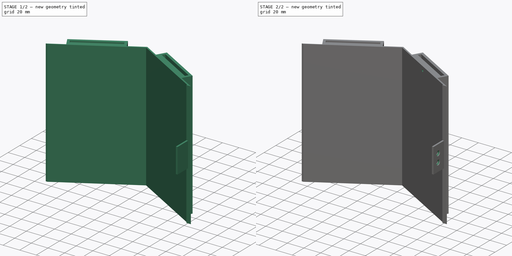
[diagram: build sequence overview — one tinted view per stage of 2, left to right]
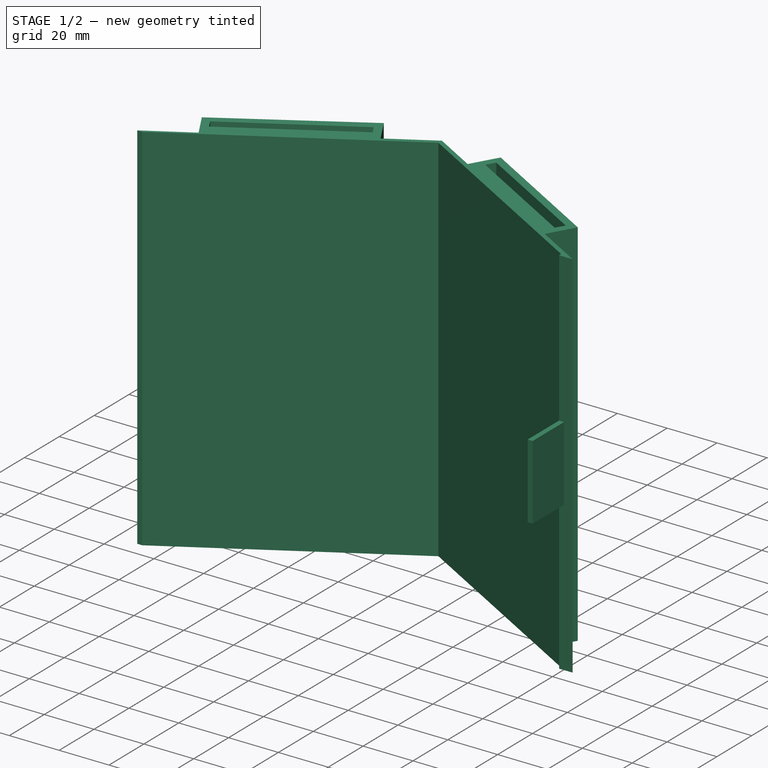
[diagram: stage 1 of 2 — iso view after this stage's code; geometry added in this stage tinted green]
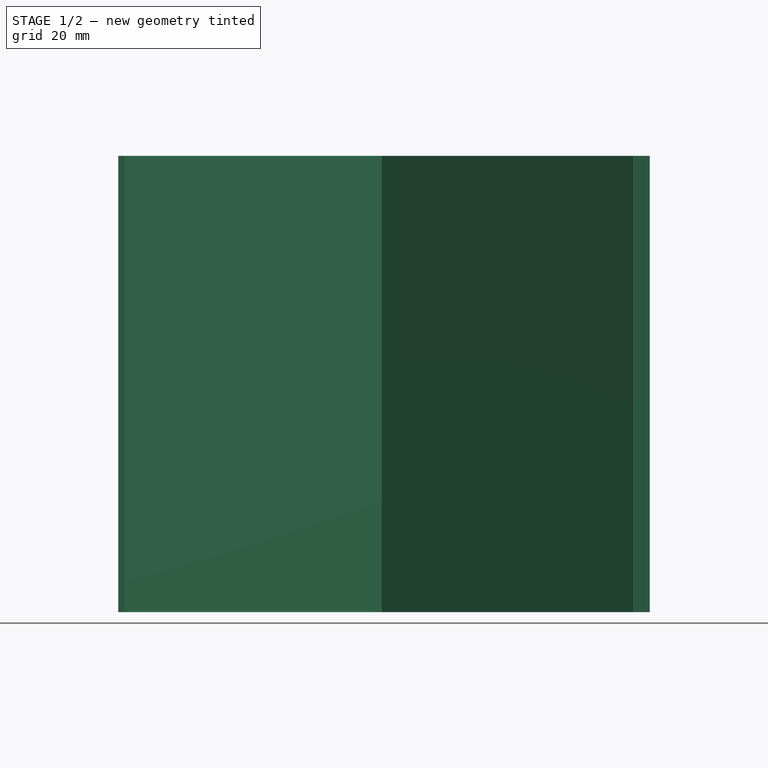
[diagram: stage 1 of 2 — front view after this stage's code; geometry added in this stage tinted green]
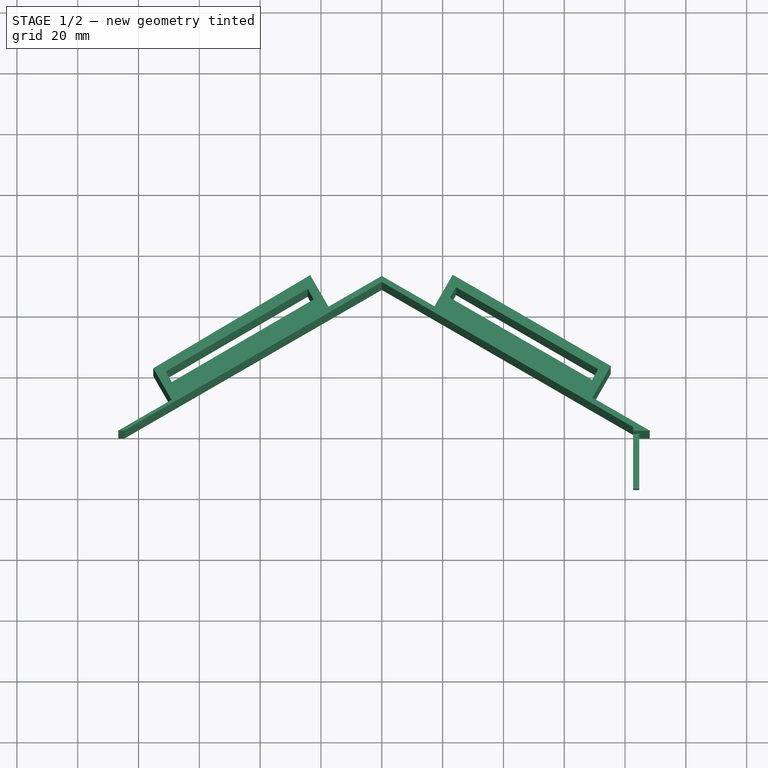
[diagram: stage 1 of 2 — top view after this stage's code; geometry added in this stage tinted green]
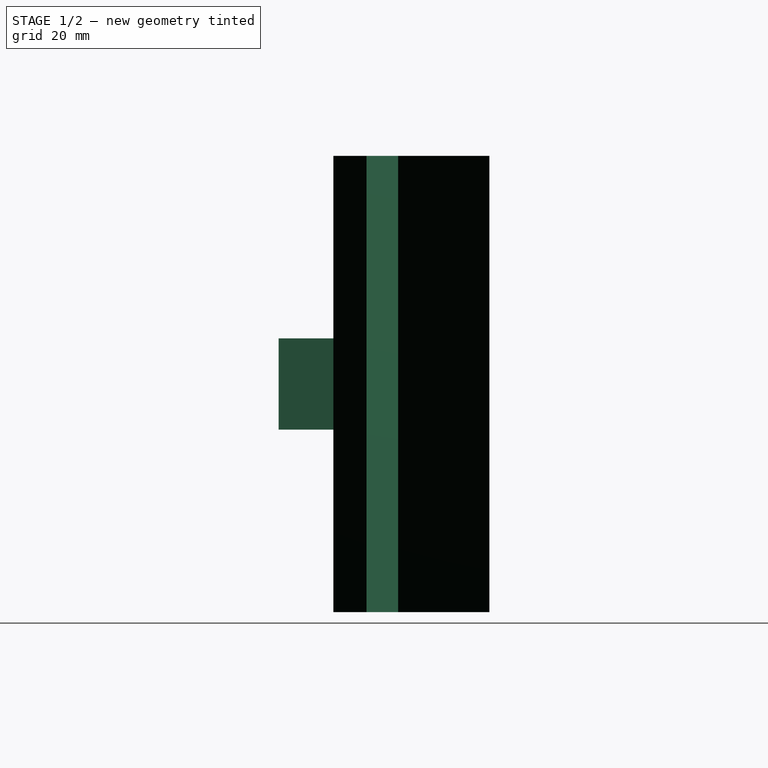
[diagram: stage 1 of 2 — right view after this stage's code; geometry added in this stage tinted green]
FCSTD DOCUMENT  (FreeCAD 0.20R29177 +426 (Git))
Label: classifier_middle_verPartial2
License: All rights reserved
LicenseURL: https://en.wikipedia.org/wiki/All_rights_reserved
objects: Sketcher::SketchObject×8, PartDesign::Hole×2, PartDesign::Pad×1, PartDesign::Pocket×1, PartDesign::CoordinateSystem×1, PartDesign::Body×1
note: 18 computed .brp shape members not serialized (recipe doc carries the construction recipe); baked Part::Feature solids carry a one-line shape summary decoded from their .brp

FEATURE [Sketcher::SketchObject] Sketch
  FullyConstrained = true
  MapMode = 5
  Support = -> [XY_Plane]
  sketch-geometry (40):
    g0: LineSegment StartX=82.66 StartY=1.1547 StartZ=0 EndX=0 EndY=48.8785 EndZ=0
    g1: LineSegment StartX=0 StartY=48.8785 StartZ=0 EndX=-84.66 EndY=-7.1e-15 EndZ=0
    g2: Circle CenterX=0 CenterY=-48.8785 CenterZ=0 NormalX=0 NormalY=0 NormalZ=1 AngleXU=0 Radius=97.7569
    g3: LineSegment StartX=0 StartY=50.8785 StartZ=0 EndX=-17.5342 EndY=40.7551 EndZ=0
    g4: Circle CenterX=0 CenterY=-48.8785 CenterZ=0 NormalX=0 NormalY=0 NormalZ=1 AngleXU=0 Radius=99.7569
    g5: GeomPoint X=43.3013 Y=25.8785 Z=0
    g6: GeomPoint X=-43.33 Y=25.4392 Z=0
    g7: LineSegment StartX=-69.1258 StartY=10.1234 StartZ=0 EndX=-75.1258 EndY=20.5157 EndZ=0
    g8: LineSegment StartX=-75.1258 StartY=20.5157 StartZ=0 EndX=-23.5342 EndY=51.1474 EndZ=0
    g9: LineSegment StartX=-23.5342 StartY=51.1474 StartZ=0 EndX=-17.5342 EndY=40.7551 EndZ=0
    g10: LineSegment StartX=-71.0462 StartY=19.4492 StartZ=0 EndX=-69.0462 EndY=15.9851 EndZ=0
    g11: LineSegment StartX=-69.0462 StartY=15.9851 StartZ=0 EndX=-22.3817 EndY=43.1517 EndZ=0
    g12: LineSegment StartX=-22.3817 StartY=43.1517 StartZ=0 EndX=-24.3817 EndY=46.6158 EndZ=0
    g13: LineSegment StartX=-24.3817 StartY=46.6158 StartZ=0 EndX=-71.0462 EndY=19.4492 EndZ=0
    g14: LineSegment StartX=-23.5342 StartY=51.1474 StartZ=0 EndX=-21.8021 EndY=48.1474 EndZ=0
    g15: LineSegment StartX=-26.1138 StartY=49.6158 StartZ=0 EndX=-24.3817 EndY=46.6158 EndZ=0
    g16: LineSegment StartX=-24.3817 StartY=46.6158 StartZ=0 EndX=-21.8021 EndY=48.1474 EndZ=0
    g17: LineSegment StartX=-23.5342 StartY=51.1474 StartZ=0 EndX=-26.1138 EndY=49.6158 EndZ=0
    g18: LineSegment StartX=-71.0462 StartY=19.4492 StartZ=0 EndX=-72.5462 EndY=22.0473 EndZ=0
    g19: LineSegment StartX=-71.0462 StartY=19.4492 StartZ=0 EndX=-73.6258 EndY=17.9176 EndZ=0
    g20: LineSegment StartX=75.282 StartY=21.2708 StartZ=0 EndX=69.282 EndY=10.8785 EndZ=0
    g21: LineSegment StartX=23.3205 StartY=51.2708 StartZ=0 EndX=75.282 EndY=21.2708 EndZ=0
    g22: LineSegment StartX=72.684 StartY=22.7708 StartZ=0 EndX=71.184 EndY=20.1727 EndZ=0
    g23: LineSegment StartX=71.184 StartY=20.1727 StartZ=0 EndX=73.782 EndY=18.6727 EndZ=0
    g24: LineSegment StartX=69.184 StartY=16.7086 StartZ=0 EndX=71.184 EndY=20.1727 EndZ=0
    g25: LineSegment StartX=71.184 StartY=20.1727 StartZ=0 EndX=24.4186 EndY=47.1727 EndZ=0
    g26: LineSegment StartX=22.4186 StartY=43.7086 StartZ=0 EndX=69.184 EndY=16.7086 EndZ=0
    g27: LineSegment StartX=24.4186 StartY=47.1727 StartZ=0 EndX=22.4186 EndY=43.7086 EndZ=0
    g28: LineSegment StartX=24.4186 StartY=47.1727 StartZ=0 EndX=25.9186 EndY=49.7708 EndZ=0
    g29: LineSegment StartX=24.4186 StartY=47.1727 StartZ=0 EndX=21.8205 EndY=48.6727 EndZ=0
    g30: LineSegment StartX=17.3205 StartY=40.8785 StartZ=0 EndX=23.3205 EndY=51.2708 EndZ=0
    g31: LineSegment StartX=17.3205 StartY=40.8785 StartZ=0 EndX=0 EndY=50.8785 EndZ=0
    g32: LineSegment StartX=84.66 StartY=0 StartZ=0 EndX=84.66 EndY=-18 EndZ=0
    g33: LineSegment StartX=84.66 StartY=-18 StartZ=0 EndX=82.66 EndY=-18 EndZ=0
    g34: LineSegment StartX=82.66 StartY=-18 StartZ=0 EndX=82.66 EndY=1.1547 EndZ=0
    g35: LineSegment StartX=0 StartY=48.8785 StartZ=0 EndX=84.66 EndY=-7.1e-15 EndZ=0
    g36: LineSegment StartX=69.282 StartY=10.8785 StartZ=0 EndX=88.1241 EndY=0 EndZ=0
    g37: LineSegment StartX=84.66 StartY=0 StartZ=0 EndX=88.1241 EndY=0 EndZ=0
    g38: LineSegment StartX=-84.66 StartY=-7.1e-15 StartZ=0 EndX=-86.66 EndY=-7.1e-15 EndZ=0
    g39: LineSegment StartX=-69.1258 StartY=10.1234 StartZ=0 EndX=-86.66 EndY=-7.1e-15 EndZ=0
  constraints (112):
    c: Coincident(g0,g1)
    c: PointOnObject(g0,g2)
    c: PointOnObject(g1,g2)
    c: Coincident(g31,g3)
    c: PointOnObject(g31,g4)
    c: Angle(g-2,g0) = 1.0472
    c: PointOnObject(g0,g-2)
    c: PointOnObject(g31,g-2)
    c: Parallel(g1,g3)
    c: PointOnObject(g32,g-1)
    c: Coincident(g2,g4)
    c: PointOnObject(g2,g-2)
    c: Coincident(g7,g8)
    c: Coincident(g8,g9)
    c: Parallel(g7,g9)
    c: Distance(g9) = 12
    c: Equal(g7,g9)
    c: Distance(g8) = 60
    c: Symmetric(g9,g7,g6)
    c: Coincident(g10,g11)
    c: Coincident(g11,g12)
    c: Coincident(g13,g10)
    c: Parallel(g12,g10)
    c: Parallel(g10,g7)
    c: Parallel(g11,g13)
    c: Coincident(g14,g8)
    c: PointOnObject(g15,g8)
    c: Coincident(g15,g12)
    c: Equal(g15,g14)
    c: Coincident(g13,g12)
    c: Parallel(g15,g14)
    c: DistanceY(g14,g14) = 3
    c: Coincident(g16,g12)
    c: Coincident(g16,g14)
    c: Coincident(g17,g8)
    c: Distance(g17) = 3
    c: Equal(g16,g17)
    c: Parallel(g17,g16)
    c: PointOnObject(g16,g9)
    c: Coincident(g18,g10)
    c: PointOnObject(g18,g8)
    c: Coincident(g19,g10)
    c: PointOnObject(g19,g7)
    c: Parallel(g18,g7)
    c: Parallel(g8,g19)
    c: Distance(g18) = 3
    c: Distance(g19) = 3
    c: Distance(g12) = 4
    c: Coincident(g30,g21)
    c: Coincident(g21,g20)
    c: Parallel(g30,g20)
    c: Distance(g20) = 12
    c: Equal(g30,g20)
    c: Distance(g21) = 60
    c: Coincident(g27,g26)
    c: Coincident(g26,g24)
    c: Coincident(g25,g27)
    c: Parallel(g24,g27)
    c: Parallel(g27,g30)
    c: Parallel(g26,g25)
    c: PointOnObject(g22,g21)
    c: Coincident(g22,g24)
    c: Coincident(g25,g24)
    c: Coincident(g23,g24)
    c: PointOnObject(g23,g20)
    c: Coincident(g28,g27)
    c: PointOnObject(g28,g21)
    c: Coincident(g29,g27)
    c: PointOnObject(g29,g30)
    c: Parallel(g28,g30)
    c: Parallel(g21,g29)
    c: Distance(g28) = 3
    c: Distance(g29) = 3
    c: Distance(g24) = 4
    c: Parallel(g23,g21)
    c: Parallel(g22,g20)
    c: Parallel(g25,g21)
    c: Equal(g23,g29)
    c: Symmetric(g20,g30,g5)
    c: Perpendicular(g3,g9) = 1.5708
    c: Coincident(g31,g30)
    c: Parallel(g31,g0)
    c: Vertical(g32)
    c: DistanceY(g32,g32) = 18
    c: Coincident(g33,g32)
    c: Horizontal(g33)
    c: Coincident(g34,g33)
    c: Vertical(g34)
    c: DistanceX(g33,g33) = 2
    c: Coincident(g0,g34)
    c: Coincident(g35,g0)
    c: PointOnObject(g0,g35)
    c: Distance(g31) = 20
    c: DistanceY(g0,g3) = 2
    c: DistanceX(g1,g32) = 169.32
    c: Coincident(g35,g32)
    c: Symmetric(g32,g1,g-1)
    c: Coincident(g36,g20)
    c: PointOnObject(g36,g-1)
    c: Parallel(g36,g0)
    c: Perpendicular(g21,g20)
    c: Perpendicular(g31,g30)
    c: Coincident(g37,g32)
    c: Coincident(g37,g36)
    c: Coincident(g38,g1)
    c: Horizontal(g38)
    c: DistanceX(g38,g38) = 2
    c: Coincident(g39,g7)
    c: Coincident(g39,g38)
    c: Perpendicular(g39,g7)
    c: Equal(g3,g39)
    c: PointOnObject(g9,g3)
FEATURE [PartDesign::Pad] Pad
  Direction = (0,0,1)
  Length = 150
  Length2 = 10
  Profile = -> Sketch
  ReferenceAxis = -> Sketch [N_Axis]
  Refine = true
  Type = 0
FEATURE [Sketcher::SketchObject] Sketch001
  ExternalGeometry = -> [Pad]
  FullyConstrained = false
  MapMode = 5
  Placement = pos=(84.66,0,0) rot=(0.57735,0.57735,0.57735;2.0944rad)
  Support = -> [Pad]
  sketch-geometry (8):
    g0: LineSegment StartX=0 StartY=0 StartZ=0 EndX=-46.4356 EndY=0 EndZ=0
    g1: LineSegment StartX=-46.4356 StartY=0 StartZ=0 EndX=-46.4356 EndY=60 EndZ=0
    g2: LineSegment StartX=-46.4356 StartY=60 StartZ=0 EndX=0 EndY=60 EndZ=0
    g3: LineSegment StartX=0 StartY=60 StartZ=0 EndX=0 EndY=0 EndZ=0
    g4: LineSegment StartX=0 StartY=150 StartZ=0 EndX=-46.4356 EndY=150 EndZ=0
    g5: LineSegment StartX=-46.4356 StartY=150 StartZ=0 EndX=-46.4356 EndY=90 EndZ=0
    g6: LineSegment StartX=-46.4356 StartY=90 StartZ=0 EndX=0 EndY=90 EndZ=0
    g7: LineSegment StartX=0 StartY=90 StartZ=0 EndX=0 EndY=150 EndZ=0
  constraints (22):
    c: Coincident(g0,g1)
    c: Coincident(g1,g2)
    c: Coincident(g2,g3)
    c: Coincident(g3,g0)
    c: Horizontal(g0)
    c: Horizontal(g2)
    c: Vertical(g1)
    c: Vertical(g3)
    c: Coincident(g0,g-1)
    c: DistanceY(g-3,g-3) = 150
    c: Coincident(g4,g5)
    c: Coincident(g5,g6)
    c: Coincident(g6,g7)
    c: Coincident(g7,g4)
    c: Horizontal(g4)
    c: Horizontal(g6)
    c: Vertical(g5)
    c: Vertical(g7)
    c: Coincident(g4,g-4)
    c: Vertical(g5,g1)
    c: Equal(g5,g1)
    c: DistanceY(g1,g1) = 60
FEATURE [PartDesign::Pocket] Pocket
  BaseFeature = -> Pad
  Direction = (-1,0,0)
  Length = 5
  Length2 = 5
  Profile = -> Sketch001
  ReferenceAxis = -> Sketch001 [N_Axis]
  Refine = true
  Type = 0
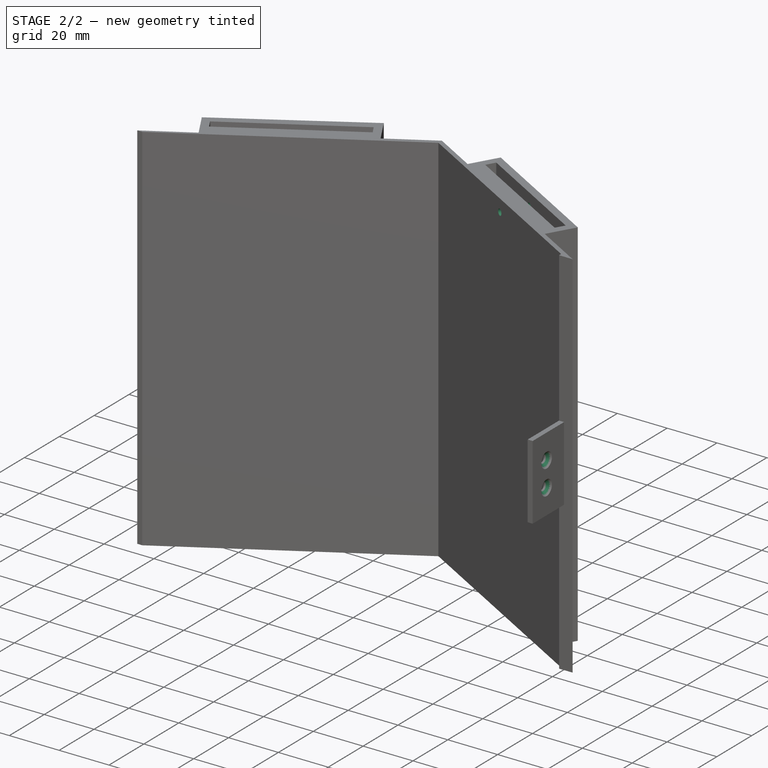
[diagram: stage 2 of 2 — iso view after this stage's code; geometry added in this stage tinted green]
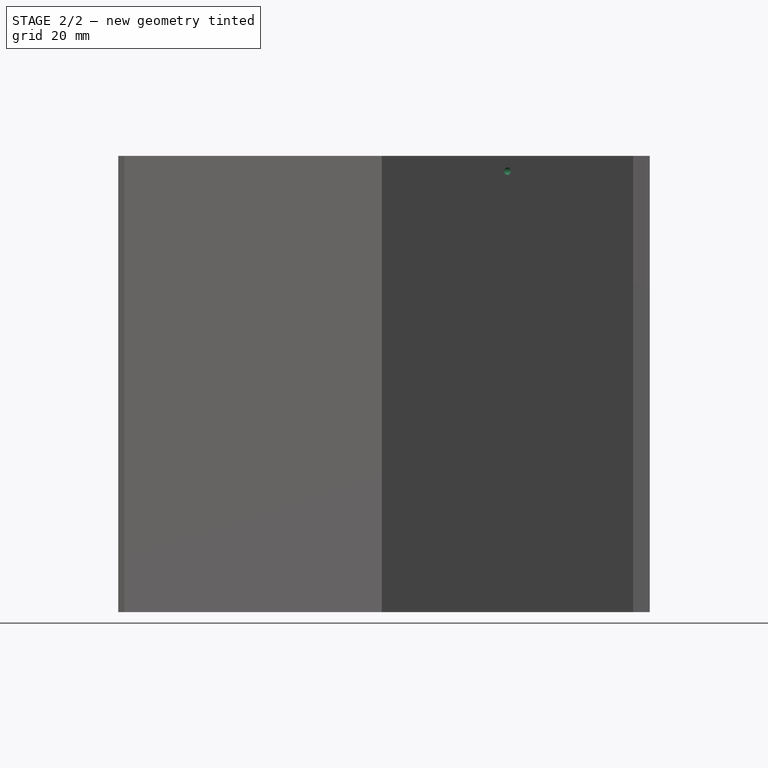
[diagram: stage 2 of 2 — front view after this stage's code; geometry added in this stage tinted green]
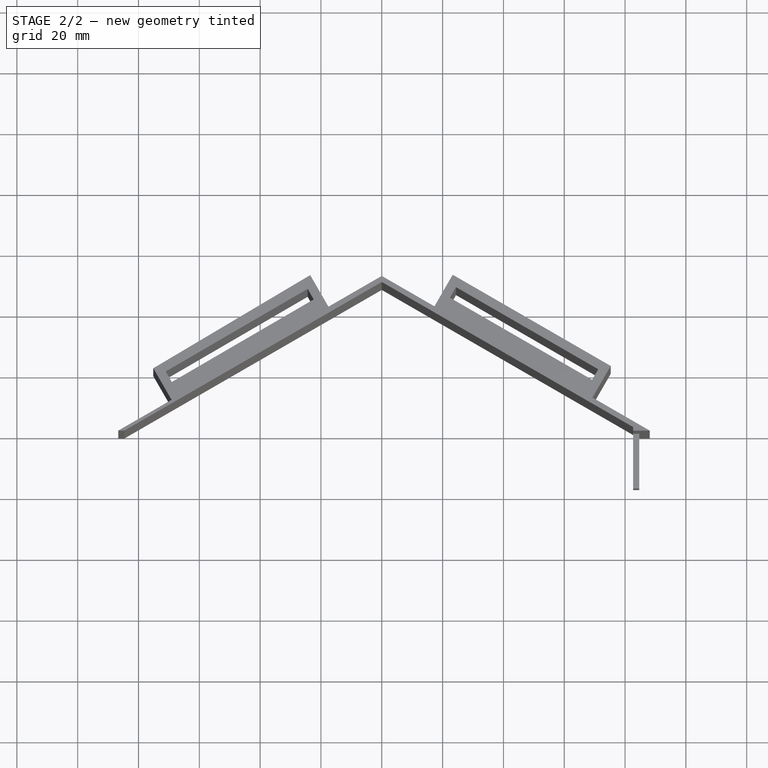
[diagram: stage 2 of 2 — top view after this stage's code; geometry added in this stage tinted green]
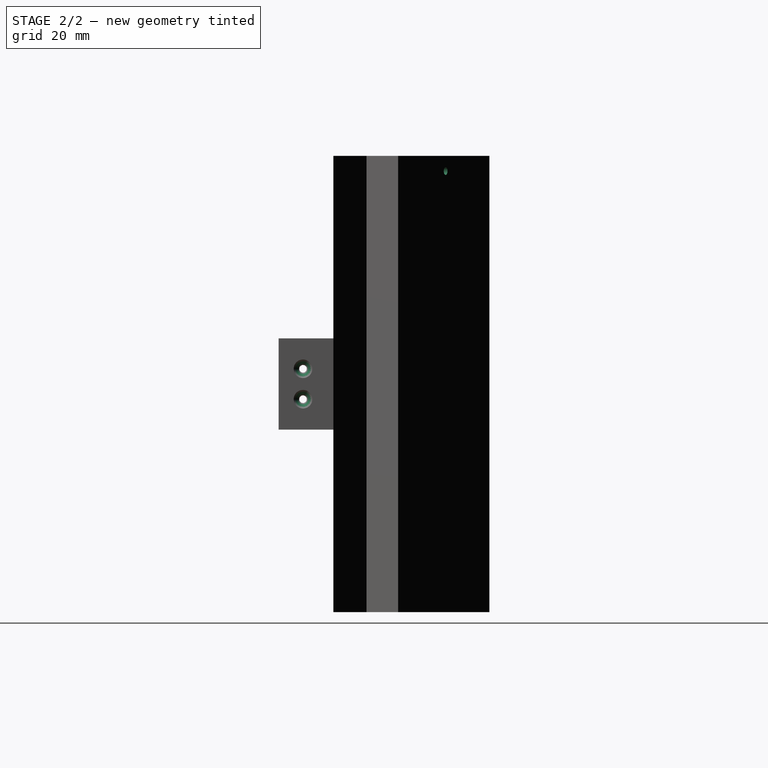
[diagram: stage 2 of 2 — right view after this stage's code; geometry added in this stage tinted green]
FEATURE [Sketcher::SketchObject] Sketch002
  ExternalGeometry = -> [Pocket]
  FullyConstrained = true
  MapMode = 5
  Placement = pos=(84.66,0,0) rot=(0.57735,0.57735,0.57735;2.0944rad)
  Support = -> [Pocket]
  sketch-geometry (5):
    g0: Circle CenterX=-10 CenterY=80 CenterZ=0 NormalX=0 NormalY=0 NormalZ=1 AngleXU=0 Radius=3
    g1: Circle CenterX=-10 CenterY=70 CenterZ=0 NormalX=0 NormalY=0 NormalZ=1 AngleXU=0 Radius=3
    g2: GeomPoint X=0 Y=75 Z=0
    g3: GeomPoint X=-10 Y=75 Z=0
    g4: GeomPoint X=-18 Y=0 Z=0
  constraints (11):
    c: Equal(g1,g0)
    c: Diameter(g1) = 6
    c: Vertical(g1,g0)
    c: DistanceY(g1,g0) = 10
    c: Symmetric(g-6,g-5,g2)
    c: Horizontal(g3,g2)
    c: Symmetric(g0,g1,g3)
    c: DistanceX(g1,g-1) = 10
    c: DistanceY(g-1,g1) = 70
    c: PointOnObject(g4,g-1)
    c: Vertical(g4,g-5)
FEATURE [PartDesign::Hole] Hole
  BaseFeature = -> Pocket
  CustomThreadClearance = 0
  Depth = 25
  DepthType = 0
  Diameter = 2.5
  DrillForDepth = false
  DrillPoint = 1
  DrillPointAngle = 118
  HoleCutCountersinkAngle = 90
  HoleCutCustomValues = false
  HoleCutDepth = 0
  HoleCutDiameter = 6.1
  HoleCutType = 2
  ModelThread = false
  Profile = -> Sketch002
  Tapered = false
  TaperedAngle = 90
  ThreadClass = 0
  ThreadDepth = 25
  ThreadDepthType = 0
  ThreadDirection = 0
  ThreadFit = 0
  ThreadSize = 9
  ThreadType = 1
  Threaded = true
  UseCustomThreadClearance = false
FEATURE [Sketcher::SketchObject] Sketch003
  ExternalGeometry = -> [Hole]
  FullyConstrained = true
  MapMode = 5
  Placement = pos=(4.49684,2.59625,0) rot=(0.377964,0.654654,0.654654;2.41886rad)
  Support = -> [Hole]
  sketch-geometry (2):
    g0: Circle CenterX=34.0621 CenterY=70 CenterZ=0 NormalX=0 NormalY=0 NormalZ=1 AngleXU=0 Radius=3
    g1: Circle CenterX=34.0621 CenterY=80 CenterZ=0 NormalX=0 NormalY=0 NormalZ=1 AngleXU=0 Radius=3
  constraints (6):
    c: Equal(g1,g0)
    c: Vertical(g1,g0)
    c: Diameter(g0) = 6
    c: DistanceY(g-3,g0) = 70
    c: DistanceY(g0,g1) = 10
    c: DistanceX(g0,g-4) = 10
FEATURE [Sketcher::SketchObject] Sketch004
  FullyConstrained = false
  MapMode = 5
  Placement = pos=(-21.1703,36.6587,0) rot=(0.935087,0.250612,0.250612;1.63786rad)
  sketch-geometry (5):
    g0: LineSegment StartX=-68.3034 StartY=83 StartZ=0 EndX=-60.3034 EndY=83 EndZ=0
    g1: LineSegment StartX=-60.3034 StartY=83 StartZ=0 EndX=-60.3034 EndY=67 EndZ=0
    g2: LineSegment StartX=-60.3034 StartY=67 StartZ=0 EndX=-68.3034 EndY=67 EndZ=0
    g3: LineSegment StartX=-68.3034 StartY=67 StartZ=0 EndX=-68.3034 EndY=83 EndZ=0
    g4: GeomPoint X=-64.3034 Y=75 Z=0
  constraints (11):
    c: Coincident(g0,g1)
    c: Coincident(g1,g2)
    c: Coincident(g2,g3)
    c: Coincident(g3,g0)
    c: Horizontal(g0)
    c: Horizontal(g2)
    c: Vertical(g1)
    c: Vertical(g3)
    c: Symmetric(g0,g2,g4)
    c: DistanceX(g0,g0) = 8
    c: DistanceY(g1,g1) = 16
FEATURE [Sketcher::SketchObject] Sketch009
  FullyConstrained = false
  MapMode = 5
  Placement = pos=(28.1523,48.4705,0) rot=(0.187089,0.694621,0.694621;2.77169rad)
  sketch-geometry (8):
    g0: LineSegment StartX=-59.0752 StartY=150 StartZ=0 EndX=10.9248 EndY=150 EndZ=0
    g1: LineSegment StartX=10.9248 StartY=150 StartZ=0 EndX=10.9248 EndY=125 EndZ=0
    g2: LineSegment StartX=10.9248 StartY=125 StartZ=0 EndX=-59.0752 EndY=125 EndZ=0
    g3: LineSegment StartX=-59.0752 StartY=125 StartZ=0 EndX=-59.0752 EndY=150 EndZ=0
    g4: LineSegment StartX=-59.0752 StartY=25 StartZ=0 EndX=10.9248 EndY=25 EndZ=0
    g5: LineSegment StartX=10.9248 StartY=25 StartZ=0 EndX=10.9248 EndY=0 EndZ=0
    g6: LineSegment StartX=10.9248 StartY=0 StartZ=0 EndX=-59.0752 EndY=0 EndZ=0
    g7: LineSegment StartX=-59.0752 StartY=0 StartZ=0 EndX=-59.0752 EndY=25 EndZ=0
  constraints (20):
    c: Coincident(g0,g1)
    c: Coincident(g1,g2)
    c: Coincident(g2,g3)
    c: Coincident(g3,g0)
    c: Horizontal(g2)
    c: Vertical(g1)
    c: Vertical(g3)
    c: DistanceY(g3,g3) = 25
    c: Coincident(g4,g5)
    c: Coincident(g5,g6)
    c: Coincident(g6,g7)
    c: Coincident(g7,g4)
    c: Vertical(g5)
    c: Vertical(g7)
    c: DistanceY(g7,g7) = 25
    c: Horizontal(g4)
    c: Tangent(g6,g-1)
    c: Vertical(g4,g1)
    c: Vertical(g2,g4)
    c: DistanceX(g4,g4) = 70
FEATURE [Sketcher::SketchObject] Sketch010
  FullyConstrained = false
  MapMode = 5
  Placement = pos=(-47.4608,-27.4015,0) rot=(0.774597,-0.447214,-0.447214;1.82348rad)
  sketch-geometry (3):
    g0: Circle CenterX=29.2443 CenterY=-5 CenterZ=0 NormalX=0 NormalY=0 NormalZ=1 AngleXU=0 Radius=3
    g1: GeomPoint X=29.2443 Y=0 Z=0
    g2: Circle CenterX=29.2443 CenterY=15 CenterZ=0 NormalX=0 NormalY=0 NormalZ=1 AngleXU=0 Radius=3
  constraints (6):
    c: Diameter(g0) = 6
    c: Vertical(g1,g0)
    c: DistanceY(g0,g1) = 5
    c: Diameter(g2) = 6
    c: Vertical(g2,g0)
    c: DistanceY(g-1,g2) = 15
FEATURE [Sketcher::SketchObject] Sketch011
  ExternalGeometry = -> [Hole]
  FullyConstrained = true
  MapMode = 5
  Placement = pos=(21.165,36.6589,0) rot=(0.935113,-0.250563,-0.250563;1.63783rad)
  Support = -> [Hole]
  sketch-geometry (2):
    g0: Circle CenterX=23.2845 CenterY=145 CenterZ=0 NormalX=0 NormalY=0 NormalZ=1 AngleXU=0 Radius=3
    g1: GeomPoint X=23.2845 Y=150 Z=0
  constraints (4):
    c: Diameter(g0) = 6
    c: Symmetric(g-3,g-3,g1)
    c: Vertical(g1,g0)
    c: DistanceY(g0,g1) = 5
FEATURE [PartDesign::Hole] Hole001
  BaseFeature = -> Hole
  CustomThreadClearance = 0
  Depth = 25
  DepthType = 0
  Diameter = 2.5
  DrillForDepth = false
  DrillPoint = 1
  DrillPointAngle = 118
  HoleCutCountersinkAngle = 90
  HoleCutCustomValues = false
  HoleCutDepth = 0
  HoleCutDiameter = 6.1
  HoleCutType = 0
  ModelThread = false
  Profile = -> Sketch011
  Tapered = false
  TaperedAngle = 90
  ThreadClass = 0
  ThreadDepth = 25
  ThreadDepthType = 0
  ThreadDirection = 0
  ThreadFit = 0
  ThreadSize = 9
  ThreadType = 1
  Threaded = true
  UseCustomThreadClearance = false
FEATURE [PartDesign::CoordinateSystem] LCS_1
  AttacherType = Attacher::AttachEngine3D
  AttachmentOffset = pos=(0,0,75) rot=(0,0,1;2.0944rad)
  MapMode = 45
  Placement = pos=(0,48.8785,150) rot=(0,0,1;2.0944rad)
  Support = -> [Hole001]
FEATURE [PartDesign::Body] Body  label="MiddlePartialBody"
  Group = -> [Sketch,Pad,Sketch001,Pocket,Sketch002,Hole,Sketch003,Sketch004,Sketch009,Sketch010,Sketch011,Hole001,LCS_1]
  Origin = -> Origin
  Tip = -> Hole001
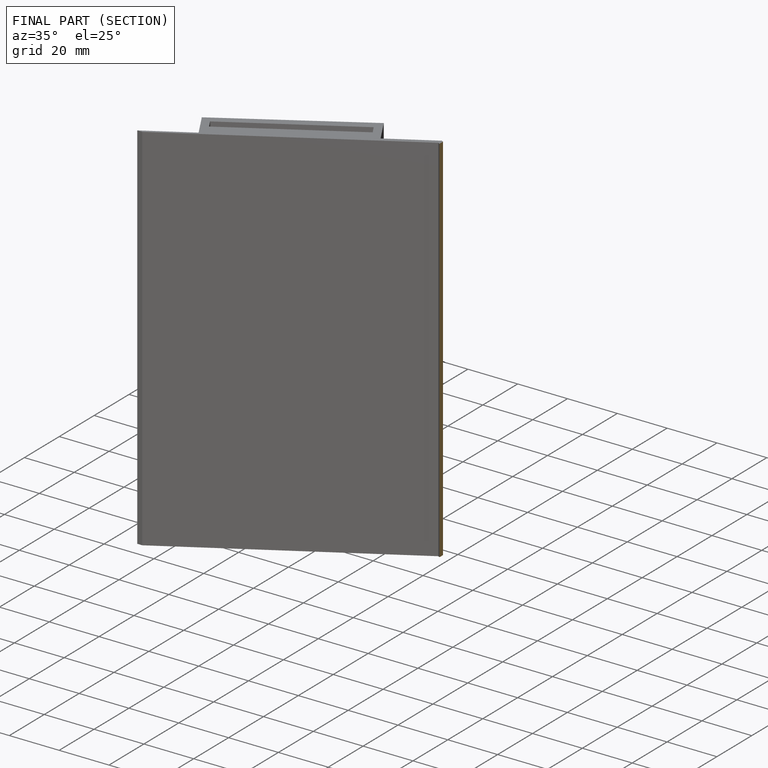
[diagram: finished part — half-section view (interior)]
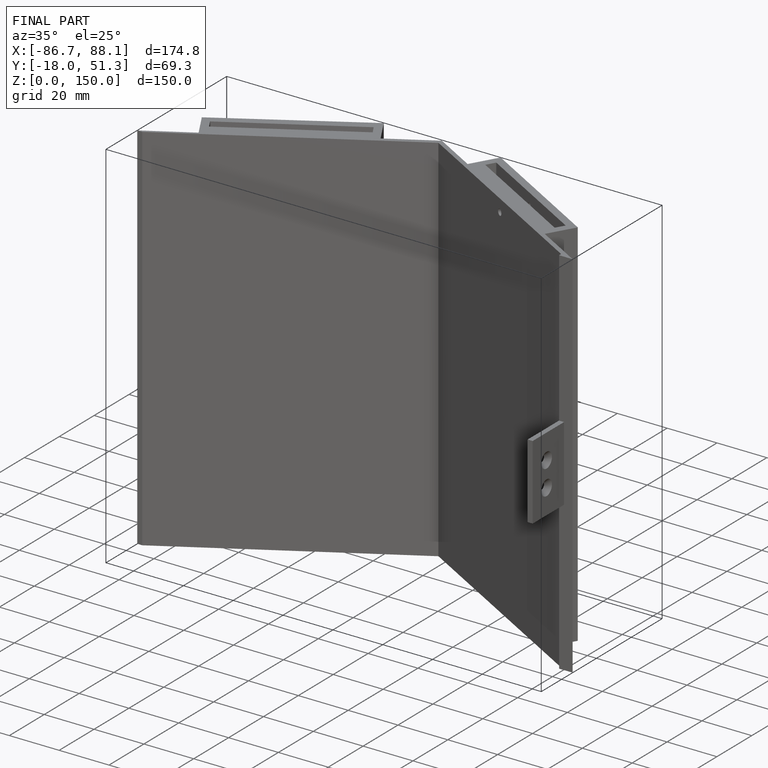
[diagram: finished part — iso view with bounding-box wireframe]
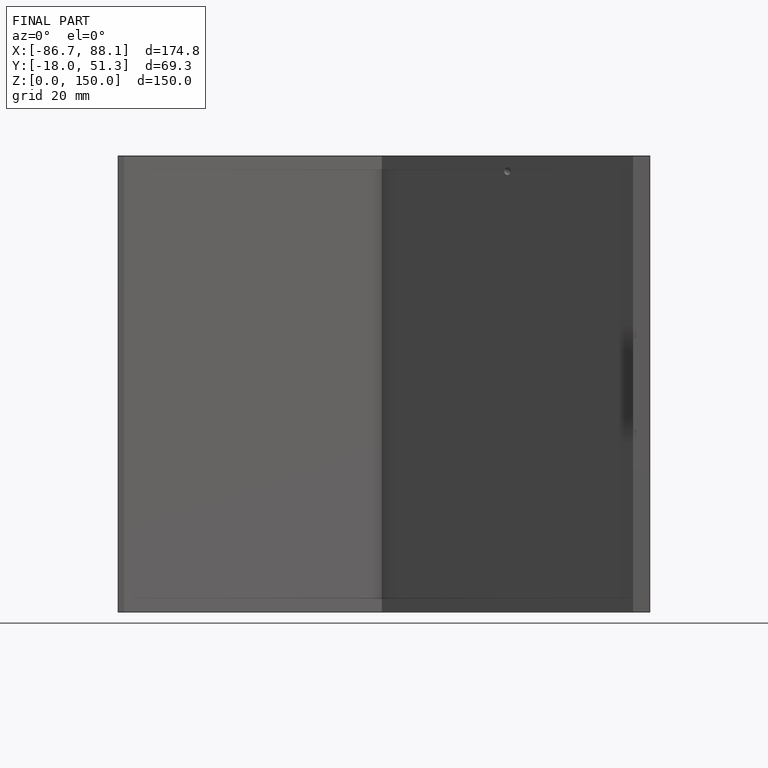
[diagram: finished part — front view with bounding-box wireframe]
